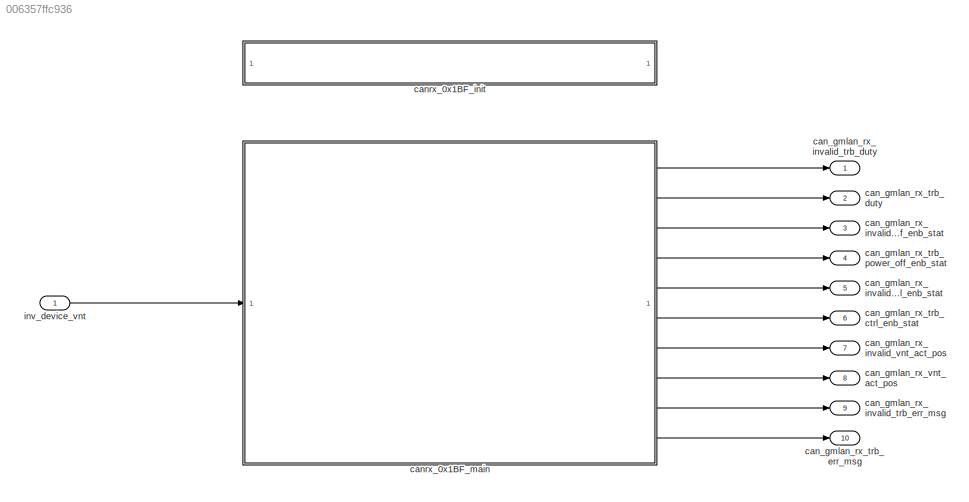
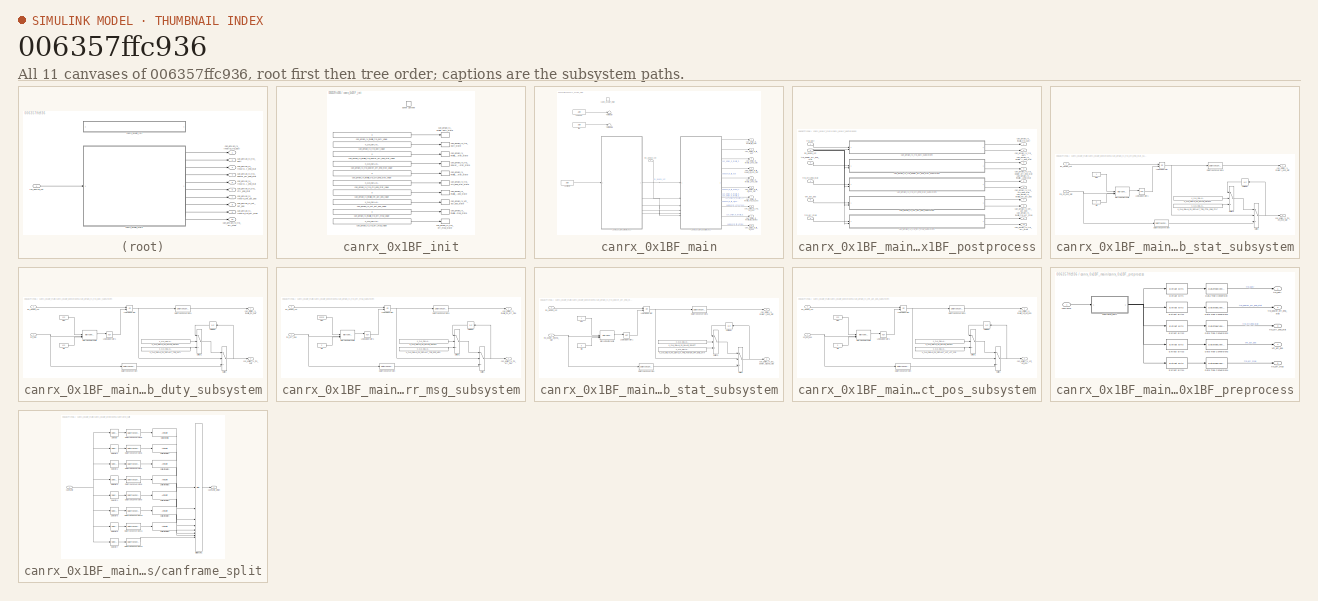
[diagram: thumbnail index - all 11 canvases of the model, root first then tree order]
MODEL slx_006357ffc936
KIND model
CONFIG AbsTol = auto
CONFIG EnableMultiTasking = off
CONFIG FixedStep = auto
CONFIG MaxStep = auto
CONFIG MinStep = auto
CONFIG RelTol = 1e-3
CONFIG SampleTimeConstraint = Unconstrained
CONFIG SolverName = FixedStepAuto
CONFIG StartTime = 0.0
CONFIG StopTime = 10.0
BLOCK [Outport] can_gmlan_rx_invalid_trb_ctrl_enb_stat
  Port = 5
BLOCK [Outport] can_gmlan_rx_invalid_trb_duty
BLOCK [Outport] can_gmlan_rx_invalid_trb_err_msg
  Port = 9
BLOCK [Outport] can_gmlan_rx_invalid_trb_power_off_enb_stat
  Port = 3
BLOCK [Outport] can_gmlan_rx_invalid_vnt_act_pos
  Port = 7
BLOCK [Outport] can_gmlan_rx_trb_ctrl_enb_stat
  Port = 6
BLOCK [Outport] can_gmlan_rx_trb_duty
  Port = 2
BLOCK [Outport] can_gmlan_rx_trb_err_msg
  Port = 10
BLOCK [Outport] can_gmlan_rx_trb_power_off_enb_stat
  Port = 4
BLOCK [Outport] can_gmlan_rx_vnt_act_pos
  Port = 8
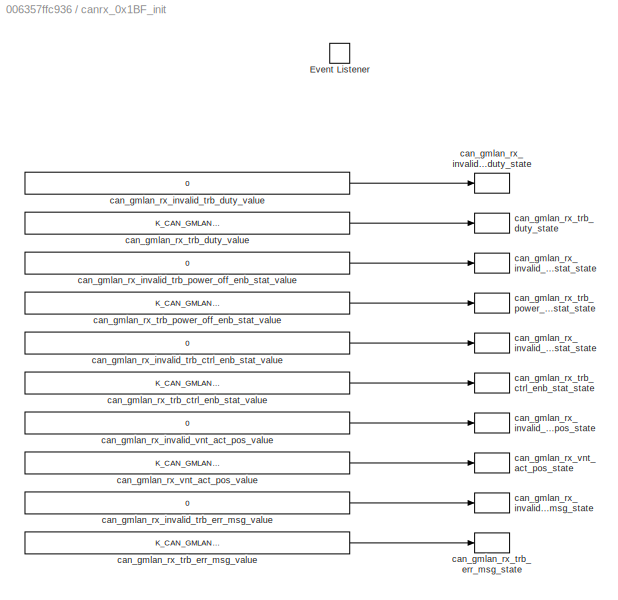
BLOCK [SubSystem] canrx_0x1BF_init
  TreatAsAtomicUnit = on
BLOCK [EventListener] canrx_0x1BF_init/Event Listener
  DisableCoverage = on
  EventName = reset
BLOCK [StateWriter] canrx_0x1BF_init/can_gmlan_rx_invalid_trb_ctrl_enb_stat_state
  StateOwnerBlock = ../../canrx_0x1BF_main/can_gmlan_rx_invalid_trb_ctrl_enb_stat
BLOCK [Constant] canrx_0x1BF_init/can_gmlan_rx_invalid_trb_ctrl_enb_stat_value
  OutDataTypeStr = Inherit: Inherit via back propagation
  Value = 0
BLOCK [StateWriter] canrx_0x1BF_init/can_gmlan_rx_invalid_trb_duty_state
  StateOwnerBlock = ../../canrx_0x1BF_main/can_gmlan_rx_invalid_trb_duty
BLOCK [Constant] canrx_0x1BF_init/can_gmlan_rx_invalid_trb_duty_value
  OutDataTypeStr = Inherit: Inherit via back propagation
  Value = 0
BLOCK [StateWriter] canrx_0x1BF_init/can_gmlan_rx_invalid_trb_err_msg_state
  StateOwnerBlock = ../../canrx_0x1BF_main/can_gmlan_rx_invalid_trb_err_msg
BLOCK [Constant] canrx_0x1BF_init/can_gmlan_rx_invalid_trb_err_msg_value
  OutDataTypeStr = Inherit: Inherit via back propagation
  Value = 0
BLOCK [StateWriter] canrx_0x1BF_init/can_gmlan_rx_invalid_trb_power_off_enb_stat_state
  StateOwnerBlock = ../../canrx_0x1BF_main/can_gmlan_rx_invalid_trb_power_off_enb_stat
BLOCK [Constant] canrx_0x1BF_init/can_gmlan_rx_invalid_trb_power_off_enb_stat_value
  OutDataTypeStr = Inherit: Inherit via back propagation
  Value = 0
BLOCK [StateWriter] canrx_0x1BF_init/can_gmlan_rx_invalid_vnt_act_pos_state
  StateOwnerBlock = ../../canrx_0x1BF_main/can_gmlan_rx_invalid_vnt_act_pos
BLOCK [Constant] canrx_0x1BF_init/can_gmlan_rx_invalid_vnt_act_pos_value
  OutDataTypeStr = Inherit: Inherit via back propagation
  Value = 0
BLOCK [StateWriter] canrx_0x1BF_init/can_gmlan_rx_trb_ctrl_enb_stat_state
  StateOwnerBlock = ../../canrx_0x1BF_main/can_gmlan_rx_trb_ctrl_enb_stat
BLOCK [Constant] canrx_0x1BF_init/can_gmlan_rx_trb_ctrl_enb_stat_value
  OutDataTypeStr = Inherit: Inherit via back propagation
  Value = K_CAN_GMLAN_RX_DEFAULT_TRB_CTRL_ENB_STAT
BLOCK [StateWriter] canrx_0x1BF_init/can_gmlan_rx_trb_duty_state
  StateOwnerBlock = ../../canrx_0x1BF_main/can_gmlan_rx_trb_duty
BLOCK [Constant] canrx_0x1BF_init/can_gmlan_rx_trb_duty_value
  OutDataTypeStr = Inherit: Inherit via back propagation
  Value = K_CAN_GMLAN_RX_DEFAULT_TRB_DUTY
BLOCK [StateWriter] canrx_0x1BF_init/can_gmlan_rx_trb_err_msg_state
  StateOwnerBlock = ../../canrx_0x1BF_main/can_gmlan_rx_trb_err_msg
BLOCK [Constant] canrx_0x1BF_init/can_gmlan_rx_trb_err_msg_value
  OutDataTypeStr = Inherit: Inherit via back propagation
  Value = K_CAN_GMLAN_RX_DEFAULT_TRB_ERR_MSG
BLOCK [StateWriter] canrx_0x1BF_init/can_gmlan_rx_trb_power_off_enb_stat_state
  StateOwnerBlock = ../../canrx_0x1BF_main/can_gmlan_rx_trb_power_off_enb_stat
BLOCK [Constant] canrx_0x1BF_init/can_gmlan_rx_trb_power_off_enb_stat_value
  OutDataTypeStr = Inherit: Inherit via back propagation
  Value = K_CAN_GMLAN_RX_DEFAULT_TRB_POWER_OFF_ENB_STAT
BLOCK [StateWriter] canrx_0x1BF_init/can_gmlan_rx_vnt_act_pos_state
  StateOwnerBlock = ../../canrx_0x1BF_main/can_gmlan_rx_vnt_act_pos
BLOCK [Constant] canrx_0x1BF_init/can_gmlan_rx_vnt_act_pos_value
  OutDataTypeStr = Inherit: Inherit via back propagation
  Value = K_CAN_GMLAN_RX_DEFAULT_VNT_ACT_POS
BLOCK [SubSystem] canrx_0x1BF_main
  TreatAsAtomicUnit = on
BLOCK [Terminator] canrx_0x1BF_main/Terminator
BLOCK [Terminator] canrx_0x1BF_main/Terminator1
BLOCK [Outport] canrx_0x1BF_main/can_gmlan_rx_invalid_trb_ctrl_enb_stat
  Port = 5
BLOCK [Outport] canrx_0x1BF_main/can_gmlan_rx_invalid_trb_duty
BLOCK [Outport] canrx_0x1BF_main/can_gmlan_rx_invalid_trb_err_msg
  Port = 9
BLOCK [Outport] canrx_0x1BF_main/can_gmlan_rx_invalid_trb_power_off_enb_stat
  Port = 3
BLOCK [Outport] canrx_0x1BF_main/can_gmlan_rx_invalid_vnt_act_pos
  Port = 7
BLOCK [Outport] canrx_0x1BF_main/can_gmlan_rx_trb_ctrl_enb_stat
  Port = 6
BLOCK [Outport] canrx_0x1BF_main/can_gmlan_rx_trb_duty
  Port = 2
BLOCK [Outport] canrx_0x1BF_main/can_gmlan_rx_trb_err_msg
  Port = 10
BLOCK [Outport] canrx_0x1BF_main/can_gmlan_rx_trb_power_off_enb_stat
  Port = 4
BLOCK [Outport] canrx_0x1BF_main/can_gmlan_rx_vnt_act_pos
  Port = 8
BLOCK [ArgIn] canrx_0x1BF_main/canframe
  ArgumentName = canframe
  DisableCoverage = on
  OutDataTypeStr = uint8
  Port = 2
  PortDimensions = 8
BLOCK [TriggerPort] canrx_0x1BF_main/canrx_0x1BF_main
  FunctionName = canrx_0x1BF_main
  FunctionVisibility = scoped
  IsSimulinkFunction = on
  StatesWhenEnabling = held
  TriggerType = function-call
  VariantControl = (inherit)
BLOCK [SubSystem] canrx_0x1BF_main/canrx_0x1BF_postprocess
  RTWFcnNameOpts = Use subsystem name
  RTWSystemCode = Reusable function
  TreatAsAtomicUnit = on
BLOCK [Outport] canrx_0x1BF_main/canrx_0x1BF_postprocess/can_gmlan_rx_invalid_trb_ctrl_enb_stat
  Port = 5
BLOCK [Outport] canrx_0x1BF_main/canrx_0x1BF_postprocess/can_gmlan_rx_invalid_trb_duty
BLOCK [Outport] canrx_0x1BF_main/canrx_0x1BF_postprocess/can_gmlan_rx_invalid_trb_err_msg
  Port = 9
BLOCK [Outport] canrx_0x1BF_main/canrx_0x1BF_postprocess/can_gmlan_rx_invalid_trb_power_off_enb_stat
  Port = 3
BLOCK [Outport] canrx_0x1BF_main/canrx_0x1BF_postprocess/can_gmlan_rx_invalid_vnt_act_pos
  Port = 7
BLOCK [Outport] canrx_0x1BF_main/canrx_0x1BF_postprocess/can_gmlan_rx_trb_ctrl_enb_stat
  Port = 6
BLOCK [SubSystem] canrx_0x1BF_main/canrx_0x1BF_postprocess/can_gmlan_rx_trb_ctrl_enb_stat_subsystem
  RTWFcnNameOpts = Use subsystem name
  RTWSystemCode = Reusable function
  TreatAsAtomicUnit = on
BLOCK [DataTypeConversion] canrx_0x1BF_main/canrx_0x1BF_postprocess/can_gmlan_rx_trb_ctrl_enb_stat_subsystem/Data Type Conversion
  ConvertRealWorld = Stored Integer (SI)
  RndMeth = Floor
  SaturateOnIntegerOverflow = off
BLOCK [DataTypeConversion] canrx_0x1BF_main/canrx_0x1BF_postprocess/can_gmlan_rx_trb_ctrl_enb_stat_subsystem/Data Type Conversion1
  ConvertRealWorld = Stored Integer (SI)
  RndMeth = Floor
  SaturateOnIntegerOverflow = off
BLOCK [Reference] canrx_0x1BF_main/canrx_0x1BF_postprocess/can_gmlan_rx_trb_ctrl_enb_stat_subsystem/Interval Test Dynamic  REF=simulink/Logic and Bit
Operations/Interval Test
Dynamic
  SourceBlock = simulink/Logic and Bit\nOperations/Interval Test\nDynamic
  SourceType = Interval Test Dynamic
BLOCK [Constant] canrx_0x1BF_main/canrx_0x1BF_postprocess/can_gmlan_rx_trb_ctrl_enb_stat_subsystem/K_CAN_GMLAN_RX_DEFAULT_TRB_CTRL_ENB_STAT
  OutDataTypeStr = Inherit: Inherit via back propagation
  Value = K_CAN_GMLAN_RX_DEFAULT_TRB_CTRL_ENB_STAT
BLOCK [Constant] canrx_0x1BF_main/canrx_0x1BF_postprocess/can_gmlan_rx_trb_ctrl_enb_stat_subsystem/K_CAN_GMLAN_RX_INVALID_SELECT
  OutDataTypeStr = Inherit: Inherit via back propagation
  Value = K_CAN_GMLAN_RX_INVALID_SELECT
BLOCK [Logic] canrx_0x1BF_main/canrx_0x1BF_postprocess/can_gmlan_rx_trb_ctrl_enb_stat_subsystem/Logical Operator
  AllPortsSameDT = off
  Operator = OR
  OutDataTypeStr = boolean
BLOCK [Logic] canrx_0x1BF_main/canrx_0x1BF_postprocess/can_gmlan_rx_trb_ctrl_enb_stat_subsystem/Logical Operator1
  AllPortsSameDT = off
  Operator = NOT
  OutDataTypeStr = boolean
BLOCK [Constant] canrx_0x1BF_main/canrx_0x1BF_postprocess/can_gmlan_rx_trb_ctrl_enb_stat_subsystem/Max
  OutDataTypeStr = Inherit: Inherit via back propagation
BLOCK [Constant] canrx_0x1BF_main/canrx_0x1BF_postprocess/can_gmlan_rx_trb_ctrl_enb_stat_subsystem/Min
  OutDataTypeStr = Inherit: Inherit via back propagation
  Value = 0
BLOCK [Switch] canrx_0x1BF_main/canrx_0x1BF_postprocess/can_gmlan_rx_trb_ctrl_enb_stat_subsystem/Switch
  Criteria = u2 > Threshold
  InputSameDT = off
  SaturateOnIntegerOverflow = off
BLOCK [Switch] canrx_0x1BF_main/canrx_0x1BF_postprocess/can_gmlan_rx_trb_ctrl_enb_stat_subsystem/Switch1
  Criteria = u2 > Threshold
  InputSameDT = off
  SaturateOnIntegerOverflow = off
BLOCK [UnitDelay] canrx_0x1BF_main/canrx_0x1BF_postprocess/can_gmlan_rx_trb_ctrl_enb_stat_subsystem/Unit Delay
  HasFrameUpgradeWarning = on
  NameLocation = top
  SampleTime = -1
BLOCK [Outport] canrx_0x1BF_main/canrx_0x1BF_postprocess/can_gmlan_rx_trb_ctrl_enb_stat_subsystem/can_gmlan_rx_invalid_trb_ctrl_enb_stat
BLOCK [Outport] canrx_0x1BF_main/canrx_0x1BF_postprocess/can_gmlan_rx_trb_ctrl_enb_stat_subsystem/can_gmlan_rx_trb_ctrl_enb_stat
  Port = 2
BLOCK [Inport] canrx_0x1BF_main/canrx_0x1BF_postprocess/can_gmlan_rx_trb_ctrl_enb_stat_subsystem/inv_device_vnt
  Port = 2
BLOCK [Inport] canrx_0x1BF_main/canrx_0x1BF_postprocess/can_gmlan_rx_trb_ctrl_enb_stat_subsystem/trb_ctrl_enb_stat
BLOCK [Outport] canrx_0x1BF_main/canrx_0x1BF_postprocess/can_gmlan_rx_trb_duty
  Port = 2
BLOCK [SubSystem] canrx_0x1BF_main/canrx_0x1BF_postprocess/can_gmlan_rx_trb_duty_subsystem
  RTWFcnNameOpts = Use subsystem name
  RTWSystemCode = Reusable function
  TreatAsAtomicUnit = on
BLOCK [DataTypeConversion] canrx_0x1BF_main/canrx_0x1BF_postprocess/can_gmlan_rx_trb_duty_subsystem/Data Type Conversion
  ConvertRealWorld = Stored Integer (SI)
  RndMeth = Floor
  SaturateOnIntegerOverflow = off
BLOCK [DataTypeConversion] canrx_0x1BF_main/canrx_0x1BF_postprocess/can_gmlan_rx_trb_duty_subsystem/Data Type Conversion1
  ConvertRealWorld = Stored Integer (SI)
  RndMeth = Floor
  SaturateOnIntegerOverflow = off
BLOCK [Reference] canrx_0x1BF_main/canrx_0x1BF_postprocess/can_gmlan_rx_trb_duty_subsystem/Interval Test Dynamic  REF=simulink/Logic and Bit
Operations/Interval Test
Dynamic
  SourceBlock = simulink/Logic and Bit\nOperations/Interval Test\nDynamic
  SourceType = Interval Test Dynamic
BLOCK [Constant] canrx_0x1BF_main/canrx_0x1BF_postprocess/can_gmlan_rx_trb_duty_subsystem/K_CAN_GMLAN_RX_DEFAULT_TRB_DUTY
  OutDataTypeStr = Inherit: Inherit via back propagation
  Value = K_CAN_GMLAN_RX_DEFAULT_TRB_DUTY
BLOCK [Constant] canrx_0x1BF_main/canrx_0x1BF_postprocess/can_gmlan_rx_trb_duty_subsystem/K_CAN_GMLAN_RX_INVALID_SELECT
  OutDataTypeStr = Inherit: Inherit via back propagation
  Value = K_CAN_GMLAN_RX_INVALID_SELECT
BLOCK [Logic] canrx_0x1BF_main/canrx_0x1BF_postprocess/can_gmlan_rx_trb_duty_subsystem/Logical Operator
  AllPortsSameDT = off
  Operator = OR
  OutDataTypeStr = boolean
BLOCK [Logic] canrx_0x1BF_main/canrx_0x1BF_postprocess/can_gmlan_rx_trb_duty_subsystem/Logical Operator1
  AllPortsSameDT = off
  Operator = NOT
  OutDataTypeStr = boolean
BLOCK [Constant] canrx_0x1BF_main/canrx_0x1BF_postprocess/can_gmlan_rx_trb_duty_subsystem/Max
  OutDataTypeStr = Inherit: Inherit via back propagation
  Value = 100
BLOCK [Constant] canrx_0x1BF_main/canrx_0x1BF_postprocess/can_gmlan_rx_trb_duty_subsystem/Min
  OutDataTypeStr = Inherit: Inherit via back propagation
  Value = -100
BLOCK [Switch] canrx_0x1BF_main/canrx_0x1BF_postprocess/can_gmlan_rx_trb_duty_subsystem/Switch
  Criteria = u2 > Threshold
  InputSameDT = off
  SaturateOnIntegerOverflow = off
BLOCK [Switch] canrx_0x1BF_main/canrx_0x1BF_postprocess/can_gmlan_rx_trb_duty_subsystem/Switch1
  Criteria = u2 > Threshold
  InputSameDT = off
  SaturateOnIntegerOverflow = off
BLOCK [UnitDelay] canrx_0x1BF_main/canrx_0x1BF_postprocess/can_gmlan_rx_trb_duty_subsystem/Unit Delay
  HasFrameUpgradeWarning = on
  NameLocation = top
  SampleTime = -1
BLOCK [Outport] canrx_0x1BF_main/canrx_0x1BF_postprocess/can_gmlan_rx_trb_duty_subsystem/can_gmlan_rx_invalid_trb_duty
BLOCK [Outport] canrx_0x1BF_main/canrx_0x1BF_postprocess/can_gmlan_rx_trb_duty_subsystem/can_gmlan_rx_trb_duty
  Port = 2
BLOCK [Inport] canrx_0x1BF_main/canrx_0x1BF_postprocess/can_gmlan_rx_trb_duty_subsystem/inv_device_vnt
  Port = 2
BLOCK [Inport] canrx_0x1BF_main/canrx_0x1BF_postprocess/can_gmlan_rx_trb_duty_subsystem/trb_duty
BLOCK [Outport] canrx_0x1BF_main/canrx_0x1BF_postprocess/can_gmlan_rx_trb_err_msg
  Port = 10
BLOCK [SubSystem] canrx_0x1BF_main/canrx_0x1BF_postprocess/can_gmlan_rx_trb_err_msg_subsystem
  RTWFcnNameOpts = Use subsystem name
  RTWSystemCode = Reusable function
  TreatAsAtomicUnit = on
BLOCK [DataTypeConversion] canrx_0x1BF_main/canrx_0x1BF_postprocess/can_gmlan_rx_trb_err_msg_subsystem/Data Type Conversion
  ConvertRealWorld = Stored Integer (SI)
  RndMeth = Floor
  SaturateOnIntegerOverflow = off
BLOCK [DataTypeConversion] canrx_0x1BF_main/canrx_0x1BF_postprocess/can_gmlan_rx_trb_err_msg_subsystem/Data Type Conversion1
  ConvertRealWorld = Stored Integer (SI)
  RndMeth = Floor
  SaturateOnIntegerOverflow = off
BLOCK [Reference] canrx_0x1BF_main/canrx_0x1BF_postprocess/can_gmlan_rx_trb_err_msg_subsystem/Interval Test Dynamic  REF=simulink/Logic and Bit
Operations/Interval Test
Dynamic
  SourceBlock = simulink/Logic and Bit\nOperations/Interval Test\nDynamic
  SourceType = Interval Test Dynamic
BLOCK [Constant] canrx_0x1BF_main/canrx_0x1BF_postprocess/can_gmlan_rx_trb_err_msg_subsystem/K_CAN_GMLAN_RX_DEFAULT_TRB_ERR_MSG
  OutDataTypeStr = Inherit: Inherit via back propagation
  Value = K_CAN_GMLAN_RX_DEFAULT_TRB_ERR_MSG
BLOCK [Constant] canrx_0x1BF_main/canrx_0x1BF_postprocess/can_gmlan_rx_trb_err_msg_subsystem/K_CAN_GMLAN_RX_INVALID_SELECT
  OutDataTypeStr = Inherit: Inherit via back propagation
  Value = K_CAN_GMLAN_RX_INVALID_SELECT
BLOCK [Logic] canrx_0x1BF_main/canrx_0x1BF_postprocess/can_gmlan_rx_trb_err_msg_subsystem/Logical Operator
  AllPortsSameDT = off
  Operator = OR
  OutDataTypeStr = boolean
BLOCK [Logic] canrx_0x1BF_main/canrx_0x1BF_postprocess/can_gmlan_rx_trb_err_msg_subsystem/Logical Operator1
  AllPortsSameDT = off
  Operator = NOT
  OutDataTypeStr = boolean
BLOCK [Constant] canrx_0x1BF_main/canrx_0x1BF_postprocess/can_gmlan_rx_trb_err_msg_subsystem/Max
  OutDataTypeStr = Inherit: Inherit via back propagation
  Value = 65535
BLOCK [Constant] canrx_0x1BF_main/canrx_0x1BF_postprocess/can_gmlan_rx_trb_err_msg_subsystem/Min
  OutDataTypeStr = Inherit: Inherit via back propagation
  Value = 0
BLOCK [Switch] canrx_0x1BF_main/canrx_0x1BF_postprocess/can_gmlan_rx_trb_err_msg_subsystem/Switch
  Criteria = u2 > Threshold
  InputSameDT = off
  SaturateOnIntegerOverflow = off
BLOCK [Switch] canrx_0x1BF_main/canrx_0x1BF_postprocess/can_gmlan_rx_trb_err_msg_subsystem/Switch1
  Criteria = u2 > Threshold
  InputSameDT = off
  SaturateOnIntegerOverflow = off
BLOCK [UnitDelay] canrx_0x1BF_main/canrx_0x1BF_postprocess/can_gmlan_rx_trb_err_msg_subsystem/Unit Delay
  HasFrameUpgradeWarning = on
  NameLocation = top
  SampleTime = -1
BLOCK [Outport] canrx_0x1BF_main/canrx_0x1BF_postprocess/can_gmlan_rx_trb_err_msg_subsystem/can_gmlan_rx_invalid_trb_err_msg
BLOCK [Outport] canrx_0x1BF_main/canrx_0x1BF_postprocess/can_gmlan_rx_trb_err_msg_subsystem/can_gmlan_rx_trb_err_msg
  Port = 2
BLOCK [Inport] canrx_0x1BF_main/canrx_0x1BF_postprocess/can_gmlan_rx_trb_err_msg_subsystem/inv_device_vnt
  Port = 2
BLOCK [Inport] canrx_0x1BF_main/canrx_0x1BF_postprocess/can_gmlan_rx_trb_err_msg_subsystem/trb_err_msg
BLOCK [Outport] canrx_0x1BF_main/canrx_0x1BF_postprocess/can_gmlan_rx_trb_power_off_enb_stat
  Port = 4
BLOCK [SubSystem] canrx_0x1BF_main/canrx_0x1BF_postprocess/can_gmlan_rx_trb_power_off_enb_stat_subsystem
  RTWFcnNameOpts = Use subsystem name
  RTWSystemCode = Reusable function
  TreatAsAtomicUnit = on
BLOCK [DataTypeConversion] canrx_0x1BF_main/canrx_0x1BF_postprocess/can_gmlan_rx_trb_power_off_enb_stat_subsystem/Data Type Conversion
  ConvertRealWorld = Stored Integer (SI)
  RndMeth = Floor
  SaturateOnIntegerOverflow = off
BLOCK [DataTypeConversion] canrx_0x1BF_main/canrx_0x1BF_postprocess/can_gmlan_rx_trb_power_off_enb_stat_subsystem/Data Type Conversion1
  ConvertRealWorld = Stored Integer (SI)
  RndMeth = Floor
  SaturateOnIntegerOverflow = off
BLOCK [Reference] canrx_0x1BF_main/canrx_0x1BF_postprocess/can_gmlan_rx_trb_power_off_enb_stat_subsystem/Interval Test Dynamic  REF=simulink/Logic and Bit
Operations/Interval Test
Dynamic
  SourceBlock = simulink/Logic and Bit\nOperations/Interval Test\nDynamic
  SourceType = Interval Test Dynamic
BLOCK [Constant] canrx_0x1BF_main/canrx_0x1BF_postprocess/can_gmlan_rx_trb_power_off_enb_stat_subsystem/K_CAN_GMLAN_RX_DEFAULT_TRB_POWER_OFF_ENB_STAT
  OutDataTypeStr = Inherit: Inherit via back propagation
  Value = K_CAN_GMLAN_RX_DEFAULT_TRB_POWER_OFF_ENB_STAT
BLOCK [Constant] canrx_0x1BF_main/canrx_0x1BF_postprocess/can_gmlan_rx_trb_power_off_enb_stat_subsystem/K_CAN_GMLAN_RX_INVALID_SELECT
  OutDataTypeStr = Inherit: Inherit via back propagation
  Value = K_CAN_GMLAN_RX_INVALID_SELECT
BLOCK [Logic] canrx_0x1BF_main/canrx_0x1BF_postprocess/can_gmlan_rx_trb_power_off_enb_stat_subsystem/Logical Operator
  AllPortsSameDT = off
  Operator = OR
  OutDataTypeStr = boolean
BLOCK [Logic] canrx_0x1BF_main/canrx_0x1BF_postprocess/can_gmlan_rx_trb_power_off_enb_stat_subsystem/Logical Operator1
  AllPortsSameDT = off
  Operator = NOT
  OutDataTypeStr = boolean
BLOCK [Constant] canrx_0x1BF_main/canrx_0x1BF_postprocess/can_gmlan_rx_trb_power_off_enb_stat_subsystem/Max
  OutDataTypeStr = Inherit: Inherit via back propagation
BLOCK [Constant] canrx_0x1BF_main/canrx_0x1BF_postprocess/can_gmlan_rx_trb_power_off_enb_stat_subsystem/Min
  OutDataTypeStr = Inherit: Inherit via back propagation
  Value = 0
BLOCK [Switch] canrx_0x1BF_main/canrx_0x1BF_postprocess/can_gmlan_rx_trb_power_off_enb_stat_subsystem/Switch
  Criteria = u2 > Threshold
  InputSameDT = off
  SaturateOnIntegerOverflow = off
BLOCK [Switch] canrx_0x1BF_main/canrx_0x1BF_postprocess/can_gmlan_rx_trb_power_off_enb_stat_subsystem/Switch1
  Criteria = u2 > Threshold
  InputSameDT = off
  SaturateOnIntegerOverflow = off
BLOCK [UnitDelay] canrx_0x1BF_main/canrx_0x1BF_postprocess/can_gmlan_rx_trb_power_off_enb_stat_subsystem/Unit Delay
  HasFrameUpgradeWarning = on
  NameLocation = top
  SampleTime = -1
BLOCK [Outport] canrx_0x1BF_main/canrx_0x1BF_postprocess/can_gmlan_rx_trb_power_off_enb_stat_subsystem/can_gmlan_rx_invalid_trb_power_off_enb_stat
BLOCK [Outport] canrx_0x1BF_main/canrx_0x1BF_postprocess/can_gmlan_rx_trb_power_off_enb_stat_subsystem/can_gmlan_rx_trb_power_off_enb_stat
  Port = 2
BLOCK [Inport] canrx_0x1BF_main/canrx_0x1BF_postprocess/can_gmlan_rx_trb_power_off_enb_stat_subsystem/inv_device_vnt
  Port = 2
BLOCK [Inport] canrx_0x1BF_main/canrx_0x1BF_postprocess/can_gmlan_rx_trb_power_off_enb_stat_subsystem/trb_power_off_enb_stat
BLOCK [Outport] canrx_0x1BF_main/canrx_0x1BF_postprocess/can_gmlan_rx_vnt_act_pos
  Port = 8
BLOCK [SubSystem] canrx_0x1BF_main/canrx_0x1BF_postprocess/can_gmlan_rx_vnt_act_pos_subsystem
  RTWFcnNameOpts = Use subsystem name
  RTWSystemCode = Reusable function
  TreatAsAtomicUnit = on
BLOCK [DataTypeConversion] canrx_0x1BF_main/canrx_0x1BF_postprocess/can_gmlan_rx_vnt_act_pos_subsystem/Data Type Conversion
  ConvertRealWorld = Stored Integer (SI)
  RndMeth = Floor
  SaturateOnIntegerOverflow = off
BLOCK [DataTypeConversion] canrx_0x1BF_main/canrx_0x1BF_postprocess/can_gmlan_rx_vnt_act_pos_subsystem/Data Type Conversion1
  ConvertRealWorld = Stored Integer (SI)
  RndMeth = Floor
  SaturateOnIntegerOverflow = off
BLOCK [Reference] canrx_0x1BF_main/canrx_0x1BF_postprocess/can_gmlan_rx_vnt_act_pos_subsystem/Interval Test Dynamic  REF=simulink/Logic and Bit
Operations/Interval Test
Dynamic
  SourceBlock = simulink/Logic and Bit\nOperations/Interval Test\nDynamic
  SourceType = Interval Test Dynamic
BLOCK [Constant] canrx_0x1BF_main/canrx_0x1BF_postprocess/can_gmlan_rx_vnt_act_pos_subsystem/K_CAN_GMLAN_RX_DEFAULT_VNT_ACT_POS
  OutDataTypeStr = Inherit: Inherit via back propagation
  Value = K_CAN_GMLAN_RX_DEFAULT_VNT_ACT_POS
BLOCK [Constant] canrx_0x1BF_main/canrx_0x1BF_postprocess/can_gmlan_rx_vnt_act_pos_subsystem/K_CAN_GMLAN_RX_INVALID_SELECT
  OutDataTypeStr = Inherit: Inherit via back propagation
  Value = K_CAN_GMLAN_RX_INVALID_SELECT
BLOCK [Logic] canrx_0x1BF_main/canrx_0x1BF_postprocess/can_gmlan_rx_vnt_act_pos_subsystem/Logical Operator
  AllPortsSameDT = off
  Operator = OR
  OutDataTypeStr = boolean
BLOCK [Logic] canrx_0x1BF_main/canrx_0x1BF_postprocess/can_gmlan_rx_vnt_act_pos_subsystem/Logical Operator1
  AllPortsSameDT = off
  Operator = NOT
  OutDataTypeStr = boolean
BLOCK [Constant] canrx_0x1BF_main/canrx_0x1BF_postprocess/can_gmlan_rx_vnt_act_pos_subsystem/Max
  OutDataTypeStr = Inherit: Inherit via back propagation
  Value = 100
BLOCK [Constant] canrx_0x1BF_main/canrx_0x1BF_postprocess/can_gmlan_rx_vnt_act_pos_subsystem/Min
  OutDataTypeStr = Inherit: Inherit via back propagation
  Value = 0
BLOCK [Switch] canrx_0x1BF_main/canrx_0x1BF_postprocess/can_gmlan_rx_vnt_act_pos_subsystem/Switch
  Criteria = u2 > Threshold
  InputSameDT = off
  SaturateOnIntegerOverflow = off
BLOCK [Switch] canrx_0x1BF_main/canrx_0x1BF_postprocess/can_gmlan_rx_vnt_act_pos_subsystem/Switch1
  Criteria = u2 > Threshold
  InputSameDT = off
  SaturateOnIntegerOverflow = off
BLOCK [UnitDelay] canrx_0x1BF_main/canrx_0x1BF_postprocess/can_gmlan_rx_vnt_act_pos_subsystem/Unit Delay
  HasFrameUpgradeWarning = on
  NameLocation = top
  SampleTime = -1
BLOCK [Outport] canrx_0x1BF_main/canrx_0x1BF_postprocess/can_gmlan_rx_vnt_act_pos_subsystem/can_gmlan_rx_invalid_vnt_act_pos
BLOCK [Outport] canrx_0x1BF_main/canrx_0x1BF_postprocess/can_gmlan_rx_vnt_act_pos_subsystem/can_gmlan_rx_vnt_act_pos
  Port = 2
BLOCK [Inport] canrx_0x1BF_main/canrx_0x1BF_postprocess/can_gmlan_rx_vnt_act_pos_subsystem/inv_device_vnt
  Port = 2
BLOCK [Inport] canrx_0x1BF_main/canrx_0x1BF_postprocess/can_gmlan_rx_vnt_act_pos_subsystem/vnt_act_pos
BLOCK [Inport] canrx_0x1BF_main/canrx_0x1BF_postprocess/inv_device_vnt
  Port = 2
BLOCK [Inport] canrx_0x1BF_main/canrx_0x1BF_postprocess/trb_ctrl_enb_stat
  Port = 4
BLOCK [Inport] canrx_0x1BF_main/canrx_0x1BF_postprocess/trb_duty
BLOCK [Inport] canrx_0x1BF_main/canrx_0x1BF_postprocess/trb_err_msg
  Port = 6
BLOCK [Inport] canrx_0x1BF_main/canrx_0x1BF_postprocess/trb_power_off_enb_stat
  Port = 3
BLOCK [Inport] canrx_0x1BF_main/canrx_0x1BF_postprocess/vnt_act_pos
  Port = 5
BLOCK [SubSystem] canrx_0x1BF_main/canrx_0x1BF_preprocess
  RTWFcnNameOpts = Use subsystem name
  RTWSystemCode = Reusable function
  TreatAsAtomicUnit = on
BLOCK [DataTypeConversion] canrx_0x1BF_main/canrx_0x1BF_preprocess/Data Type Conversion
  ConvertRealWorld = Stored Integer (SI)
  RndMeth = Floor
  SaturateOnIntegerOverflow = off
BLOCK [DataTypeConversion] canrx_0x1BF_main/canrx_0x1BF_preprocess/Data Type Conversion1
  ConvertRealWorld = Stored Integer (SI)
  RndMeth = Floor
  SaturateOnIntegerOverflow = off
BLOCK [DataTypeConversion] canrx_0x1BF_main/canrx_0x1BF_preprocess/Data Type Conversion2
  ConvertRealWorld = Stored Integer (SI)
  RndMeth = Floor
  SaturateOnIntegerOverflow = off
BLOCK [DataTypeConversion] canrx_0x1BF_main/canrx_0x1BF_preprocess/Data Type Conversion3
  ConvertRealWorld = Stored Integer (SI)
  RndMeth = Floor
  SaturateOnIntegerOverflow = off
BLOCK [DataTypeConversion] canrx_0x1BF_main/canrx_0x1BF_preprocess/Data Type Conversion4
  ConvertRealWorld = Stored Integer (SI)
  RndMeth = Floor
  SaturateOnIntegerOverflow = off
BLOCK [Reference] canrx_0x1BF_main/canrx_0x1BF_preprocess/Extract Bits  REF=simulink/Logic and Bit
Operations/Extract Bits
  SourceBlock = simulink/Logic and Bit\nOperations/Extract Bits
  SourceType = Extract Bits
BLOCK [Reference] canrx_0x1BF_main/canrx_0x1BF_preprocess/Extract Bits1  REF=simulink/Logic and Bit
Operations/Extract Bits
  SourceBlock = simulink/Logic and Bit\nOperations/Extract Bits
  SourceType = Extract Bits
BLOCK [Reference] canrx_0x1BF_main/canrx_0x1BF_preprocess/Extract Bits2  REF=simulink/Logic and Bit
Operations/Extract Bits
  SourceBlock = simulink/Logic and Bit\nOperations/Extract Bits
  SourceType = Extract Bits
BLOCK [Reference] canrx_0x1BF_main/canrx_0x1BF_preprocess/Extract Bits3  REF=simulink/Logic and Bit
Operations/Extract Bits
  SourceBlock = simulink/Logic and Bit\nOperations/Extract Bits
  SourceType = Extract Bits
BLOCK [Reference] canrx_0x1BF_main/canrx_0x1BF_preprocess/Extract Bits4  REF=simulink/Logic and Bit
Operations/Extract Bits
  SourceBlock = simulink/Logic and Bit\nOperations/Extract Bits
  SourceType = Extract Bits
BLOCK [Inport] canrx_0x1BF_main/canrx_0x1BF_preprocess/canframe
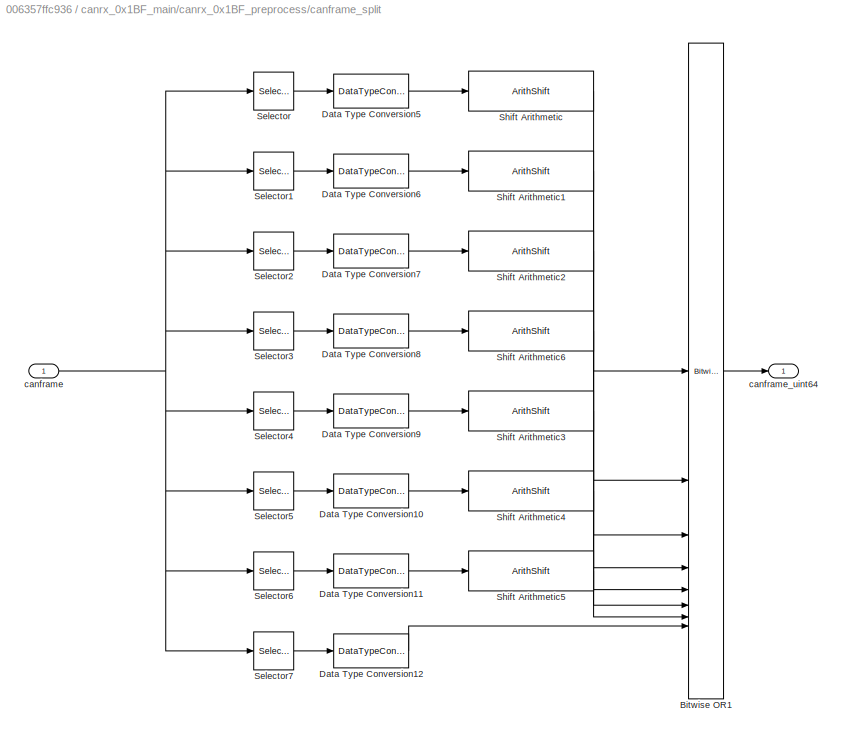
BLOCK [SubSystem] canrx_0x1BF_main/canrx_0x1BF_preprocess/canframe_split
  RTWSystemCode = Reusable function
BLOCK [Reference] canrx_0x1BF_main/canrx_0x1BF_preprocess/canframe_split/Bitwise OR1  REF=simulink/Logic and Bit
Operations/Bitwise
Operator
  SourceBlock = simulink/Logic and Bit\nOperations/Bitwise\nOperator
  SourceType = Bitwise Operator
BLOCK [DataTypeConversion] canrx_0x1BF_main/canrx_0x1BF_preprocess/canframe_split/Data Type Conversion10
  ConvertRealWorld = Stored Integer (SI)
  OutDataTypeStr = uint64
  RndMeth = Floor
  SaturateOnIntegerOverflow = off
BLOCK [DataTypeConversion] canrx_0x1BF_main/canrx_0x1BF_preprocess/canframe_split/Data Type Conversion11
  ConvertRealWorld = Stored Integer (SI)
  OutDataTypeStr = uint64
  RndMeth = Floor
  SaturateOnIntegerOverflow = off
BLOCK [DataTypeConversion] canrx_0x1BF_main/canrx_0x1BF_preprocess/canframe_split/Data Type Conversion12
  ConvertRealWorld = Stored Integer (SI)
  OutDataTypeStr = uint64
  RndMeth = Floor
  SaturateOnIntegerOverflow = off
BLOCK [DataTypeConversion] canrx_0x1BF_main/canrx_0x1BF_preprocess/canframe_split/Data Type Conversion5
  ConvertRealWorld = Stored Integer (SI)
  OutDataTypeStr = uint64
  RndMeth = Floor
  SaturateOnIntegerOverflow = off
BLOCK [DataTypeConversion] canrx_0x1BF_main/canrx_0x1BF_preprocess/canframe_split/Data Type Conversion6
  ConvertRealWorld = Stored Integer (SI)
  OutDataTypeStr = uint64
  RndMeth = Floor
  SaturateOnIntegerOverflow = off
BLOCK [DataTypeConversion] canrx_0x1BF_main/canrx_0x1BF_preprocess/canframe_split/Data Type Conversion7
  ConvertRealWorld = Stored Integer (SI)
  OutDataTypeStr = uint64
  RndMeth = Floor
  SaturateOnIntegerOverflow = off
BLOCK [DataTypeConversion] canrx_0x1BF_main/canrx_0x1BF_preprocess/canframe_split/Data Type Conversion8
  ConvertRealWorld = Stored Integer (SI)
  OutDataTypeStr = uint64
  RndMeth = Floor
  SaturateOnIntegerOverflow = off
BLOCK [DataTypeConversion] canrx_0x1BF_main/canrx_0x1BF_preprocess/canframe_split/Data Type Conversion9
  ConvertRealWorld = Stored Integer (SI)
  OutDataTypeStr = uint64
  RndMeth = Floor
  SaturateOnIntegerOverflow = off
BLOCK [Selector] canrx_0x1BF_main/canrx_0x1BF_preprocess/canframe_split/Selector
  IndexMode = Zero-based
  IndexOptions = Index vector (dialog)
  Indices = 0
  InputPortWidth = 8
  OutputSizes = 1
BLOCK [Selector] canrx_0x1BF_main/canrx_0x1BF_preprocess/canframe_split/Selector1
  IndexMode = Zero-based
  IndexOptions = Index vector (dialog)
  Indices = 1
  InputPortWidth = 8
  OutputSizes = 1
BLOCK [Selector] canrx_0x1BF_main/canrx_0x1BF_preprocess/canframe_split/Selector2
  IndexMode = Zero-based
  IndexOptions = Index vector (dialog)
  Indices = 2
  InputPortWidth = 8
  OutputSizes = 1
BLOCK [Selector] canrx_0x1BF_main/canrx_0x1BF_preprocess/canframe_split/Selector3
  IndexMode = Zero-based
  IndexOptions = Index vector (dialog)
  Indices = 3
  InputPortWidth = 8
  OutputSizes = 1
BLOCK [Selector] canrx_0x1BF_main/canrx_0x1BF_preprocess/canframe_split/Selector4
  IndexMode = Zero-based
  IndexOptions = Index vector (dialog)
  Indices = 4
  InputPortWidth = 8
  OutputSizes = 1
BLOCK [Selector] canrx_0x1BF_main/canrx_0x1BF_preprocess/canframe_split/Selector5
  IndexMode = Zero-based
  IndexOptions = Index vector (dialog)
  Indices = 5
  InputPortWidth = 8
  OutputSizes = 1
BLOCK [Selector] canrx_0x1BF_main/canrx_0x1BF_preprocess/canframe_split/Selector6
  IndexMode = Zero-based
  IndexOptions = Index vector (dialog)
  Indices = 6
  InputPortWidth = 8
  OutputSizes = 1
BLOCK [Selector] canrx_0x1BF_main/canrx_0x1BF_preprocess/canframe_split/Selector7
  IndexMode = Zero-based
  IndexOptions = Index vector (dialog)
  Indices = 7
  InputPortWidth = 8
  OutputSizes = 1
BLOCK [ArithShift] canrx_0x1BF_main/canrx_0x1BF_preprocess/canframe_split/Shift Arithmetic
  BitShiftDirection = Left
  BitShiftNumber = 56
  DiagnosticForOORShift = Error
  InputPortMap = u0
BLOCK [ArithShift] canrx_0x1BF_main/canrx_0x1BF_preprocess/canframe_split/Shift Arithmetic1
  BitShiftDirection = Left
  BitShiftNumber = 48
  DiagnosticForOORShift = Error
  InputPortMap = u0
BLOCK [ArithShift] canrx_0x1BF_main/canrx_0x1BF_preprocess/canframe_split/Shift Arithmetic2
  BitShiftDirection = Left
  BitShiftNumber = 40
  DiagnosticForOORShift = Error
  InputPortMap = u0
BLOCK [ArithShift] canrx_0x1BF_main/canrx_0x1BF_preprocess/canframe_split/Shift Arithmetic3
  BitShiftDirection = Left
  BitShiftNumber = 24
  DiagnosticForOORShift = Error
  InputPortMap = u0
BLOCK [ArithShift] canrx_0x1BF_main/canrx_0x1BF_preprocess/canframe_split/Shift Arithmetic4
  BitShiftDirection = Left
  BitShiftNumber = 16
  DiagnosticForOORShift = Error
  InputPortMap = u0
BLOCK [ArithShift] canrx_0x1BF_main/canrx_0x1BF_preprocess/canframe_split/Shift Arithmetic5
  BitShiftDirection = Left
  BitShiftNumber = 8
  DiagnosticForOORShift = Error
  InputPortMap = u0
BLOCK [ArithShift] canrx_0x1BF_main/canrx_0x1BF_preprocess/canframe_split/Shift Arithmetic6
  BitShiftDirection = Left
  BitShiftNumber = 32
  DiagnosticForOORShift = Error
  InputPortMap = u0
BLOCK [Inport] canrx_0x1BF_main/canrx_0x1BF_preprocess/canframe_split/canframe
BLOCK [Outport] canrx_0x1BF_main/canrx_0x1BF_preprocess/canframe_split/canframe_uint64
BLOCK [Outport] canrx_0x1BF_main/canrx_0x1BF_preprocess/trb_ctrl_enb_stat
  Port = 3
BLOCK [Outport] canrx_0x1BF_main/canrx_0x1BF_preprocess/trb_duty
BLOCK [Outport] canrx_0x1BF_main/canrx_0x1BF_preprocess/trb_err_msg
  Port = 5
BLOCK [Outport] canrx_0x1BF_main/canrx_0x1BF_preprocess/trb_power_off_enb_stat
  Port = 2
BLOCK [Outport] canrx_0x1BF_main/canrx_0x1BF_preprocess/vnt_act_pos
  Port = 4
BLOCK [ArgIn] canrx_0x1BF_main/channel
  ArgumentName = channel
  DisableCoverage = on
  OutDataTypeStr = uint64
BLOCK [Inport] canrx_0x1BF_main/inv_device_vnt
BLOCK [ArgIn] canrx_0x1BF_main/time
  ArgumentName = time
  DisableCoverage = on
  OutDataTypeStr = uint64
  Port = 3
BLOCK [Inport] inv_device_vnt
LINE canrx_0x1BF_init/can_gmlan_rx_invalid_trb_ctrl_enb_stat_value:1 -> canrx_0x1BF_init/can_gmlan_rx_invalid_trb_ctrl_enb_stat_state:1
LINE canrx_0x1BF_init/can_gmlan_rx_invalid_trb_duty_value:1 -> canrx_0x1BF_init/can_gmlan_rx_invalid_trb_duty_state:1
LINE canrx_0x1BF_init/can_gmlan_rx_invalid_trb_err_msg_value:1 -> canrx_0x1BF_init/can_gmlan_rx_invalid_trb_err_msg_state:1
LINE canrx_0x1BF_init/can_gmlan_rx_invalid_trb_power_off_enb_stat_value:1 -> canrx_0x1BF_init/can_gmlan_rx_invalid_trb_power_off_enb_stat_state:1
LINE canrx_0x1BF_init/can_gmlan_rx_invalid_vnt_act_pos_value:1 -> canrx_0x1BF_init/can_gmlan_rx_invalid_vnt_act_pos_state:1
LINE canrx_0x1BF_init/can_gmlan_rx_trb_ctrl_enb_stat_value:1 -> canrx_0x1BF_init/can_gmlan_rx_trb_ctrl_enb_stat_state:1
LINE canrx_0x1BF_init/can_gmlan_rx_trb_duty_value:1 -> canrx_0x1BF_init/can_gmlan_rx_trb_duty_state:1
LINE canrx_0x1BF_init/can_gmlan_rx_trb_err_msg_value:1 -> canrx_0x1BF_init/can_gmlan_rx_trb_err_msg_state:1
LINE canrx_0x1BF_init/can_gmlan_rx_trb_power_off_enb_stat_value:1 -> canrx_0x1BF_init/can_gmlan_rx_trb_power_off_enb_stat_state:1
LINE canrx_0x1BF_init/can_gmlan_rx_vnt_act_pos_value:1 -> canrx_0x1BF_init/can_gmlan_rx_vnt_act_pos_state:1
LINE canrx_0x1BF_main/canframe:1 -> canrx_0x1BF_main/canrx_0x1BF_preprocess:1
LINE canrx_0x1BF_main/canrx_0x1BF_postprocess/can_gmlan_rx_trb_ctrl_enb_stat_subsystem/Data Type Conversion1:1 -> canrx_0x1BF_main/canrx_0x1BF_postprocess/can_gmlan_rx_trb_ctrl_enb_stat_subsystem/can_gmlan_rx_invalid_trb_ctrl_enb_stat:1
LINE canrx_0x1BF_main/canrx_0x1BF_postprocess/can_gmlan_rx_trb_ctrl_enb_stat_subsystem/Data Type Conversion:1 -> canrx_0x1BF_main/canrx_0x1BF_postprocess/can_gmlan_rx_trb_ctrl_enb_stat_subsystem/Switch:3
LINE canrx_0x1BF_main/canrx_0x1BF_postprocess/can_gmlan_rx_trb_ctrl_enb_stat_subsystem/Interval Test Dynamic:1 -> canrx_0x1BF_main/canrx_0x1BF_postprocess/can_gmlan_rx_trb_ctrl_enb_stat_subsystem/Logical Operator1:1
LINE canrx_0x1BF_main/canrx_0x1BF_postprocess/can_gmlan_rx_trb_ctrl_enb_stat_subsystem/K_CAN_GMLAN_RX_DEFAULT_TRB_CTRL_ENB_STAT:1 -> canrx_0x1BF_main/canrx_0x1BF_postprocess/can_gmlan_rx_trb_ctrl_enb_stat_subsystem/Switch1:3
LINE canrx_0x1BF_main/canrx_0x1BF_postprocess/can_gmlan_rx_trb_ctrl_enb_stat_subsystem/K_CAN_GMLAN_RX_INVALID_SELECT:1 -> canrx_0x1BF_main/canrx_0x1BF_postprocess/can_gmlan_rx_trb_ctrl_enb_stat_subsystem/Switch1:2
LINE canrx_0x1BF_main/canrx_0x1BF_postprocess/can_gmlan_rx_trb_ctrl_enb_stat_subsystem/Logical Operator1:1 -> canrx_0x1BF_main/canrx_0x1BF_postprocess/can_gmlan_rx_trb_ctrl_enb_stat_subsystem/Logical Operator:2
NET canrx_0x1BF_main/canrx_0x1BF_postprocess/can_gmlan_rx_trb_ctrl_enb_stat_subsystem/Logical Operator:1 -> canrx_0x1BF_main/canrx_0x1BF_postprocess/can_gmlan_rx_trb_ctrl_enb_stat_subsystem/Data Type Conversion1:1, canrx_0x1BF_main/canrx_0x1BF_postprocess/can_gmlan_rx_trb_ctrl_enb_stat_subsystem/Switch:2
LINE canrx_0x1BF_main/canrx_0x1BF_postprocess/can_gmlan_rx_trb_ctrl_enb_stat_subsystem/Max:1 -> canrx_0x1BF_main/canrx_0x1BF_postprocess/can_gmlan_rx_trb_ctrl_enb_stat_subsystem/Interval Test Dynamic:1
LINE canrx_0x1BF_main/canrx_0x1BF_postprocess/can_gmlan_rx_trb_ctrl_enb_stat_subsystem/Min:1 -> canrx_0x1BF_main/canrx_0x1BF_postprocess/can_gmlan_rx_trb_ctrl_enb_stat_subsystem/Interval Test Dynamic:3
LINE canrx_0x1BF_main/canrx_0x1BF_postprocess/can_gmlan_rx_trb_ctrl_enb_stat_subsystem/Switch1:1 -> canrx_0x1BF_main/canrx_0x1BF_postprocess/can_gmlan_rx_trb_ctrl_enb_stat_subsystem/Switch:1
NET canrx_0x1BF_main/canrx_0x1BF_postprocess/can_gmlan_rx_trb_ctrl_enb_stat_subsystem/Switch:1 -> canrx_0x1BF_main/canrx_0x1BF_postprocess/can_gmlan_rx_trb_ctrl_enb_stat_subsystem/Unit Delay:1, canrx_0x1BF_main/canrx_0x1BF_postprocess/can_gmlan_rx_trb_ctrl_enb_stat_subsystem/can_gmlan_rx_trb_ctrl_enb_stat:1
LINE canrx_0x1BF_main/canrx_0x1BF_postprocess/can_gmlan_rx_trb_ctrl_enb_stat_subsystem/Unit Delay:1 -> canrx_0x1BF_main/canrx_0x1BF_postprocess/can_gmlan_rx_trb_ctrl_enb_stat_subsystem/Switch1:1
LINE canrx_0x1BF_main/canrx_0x1BF_postprocess/can_gmlan_rx_trb_ctrl_enb_stat_subsystem/inv_device_vnt:1 -> canrx_0x1BF_main/canrx_0x1BF_postprocess/can_gmlan_rx_trb_ctrl_enb_stat_subsystem/Logical Operator:1
NET canrx_0x1BF_main/canrx_0x1BF_postprocess/can_gmlan_rx_trb_ctrl_enb_stat_subsystem/trb_ctrl_enb_stat:1 -> canrx_0x1BF_main/canrx_0x1BF_postprocess/can_gmlan_rx_trb_ctrl_enb_stat_subsystem/Data Type Conversion:1, canrx_0x1BF_main/canrx_0x1BF_postprocess/can_gmlan_rx_trb_ctrl_enb_stat_subsystem/Interval Test Dynamic:2
LINE canrx_0x1BF_main/canrx_0x1BF_postprocess/can_gmlan_rx_trb_ctrl_enb_stat_subsystem:1 -> canrx_0x1BF_main/canrx_0x1BF_postprocess/can_gmlan_rx_invalid_trb_ctrl_enb_stat:1
LINE canrx_0x1BF_main/canrx_0x1BF_postprocess/can_gmlan_rx_trb_ctrl_enb_stat_subsystem:2 -> canrx_0x1BF_main/canrx_0x1BF_postprocess/can_gmlan_rx_trb_ctrl_enb_stat:1
LINE canrx_0x1BF_main/canrx_0x1BF_postprocess/can_gmlan_rx_trb_duty_subsystem/Data Type Conversion1:1 -> canrx_0x1BF_main/canrx_0x1BF_postprocess/can_gmlan_rx_trb_duty_subsystem/can_gmlan_rx_invalid_trb_duty:1
LINE canrx_0x1BF_main/canrx_0x1BF_postprocess/can_gmlan_rx_trb_duty_subsystem/Data Type Conversion:1 -> canrx_0x1BF_main/canrx_0x1BF_postprocess/can_gmlan_rx_trb_duty_subsystem/Switch:3
LINE canrx_0x1BF_main/canrx_0x1BF_postprocess/can_gmlan_rx_trb_duty_subsystem/Interval Test Dynamic:1 -> canrx_0x1BF_main/canrx_0x1BF_postprocess/can_gmlan_rx_trb_duty_subsystem/Logical Operator1:1
LINE canrx_0x1BF_main/canrx_0x1BF_postprocess/can_gmlan_rx_trb_duty_subsystem/K_CAN_GMLAN_RX_DEFAULT_TRB_DUTY:1 -> canrx_0x1BF_main/canrx_0x1BF_postprocess/can_gmlan_rx_trb_duty_subsystem/Switch1:3
LINE canrx_0x1BF_main/canrx_0x1BF_postprocess/can_gmlan_rx_trb_duty_subsystem/K_CAN_GMLAN_RX_INVALID_SELECT:1 -> canrx_0x1BF_main/canrx_0x1BF_postprocess/can_gmlan_rx_trb_duty_subsystem/Switch1:2
LINE canrx_0x1BF_main/canrx_0x1BF_postprocess/can_gmlan_rx_trb_duty_subsystem/Logical Operator1:1 -> canrx_0x1BF_main/canrx_0x1BF_postprocess/can_gmlan_rx_trb_duty_subsystem/Logical Operator:2
NET canrx_0x1BF_main/canrx_0x1BF_postprocess/can_gmlan_rx_trb_duty_subsystem/Logical Operator:1 -> canrx_0x1BF_main/canrx_0x1BF_postprocess/can_gmlan_rx_trb_duty_subsystem/Data Type Conversion1:1, canrx_0x1BF_main/canrx_0x1BF_postprocess/can_gmlan_rx_trb_duty_subsystem/Switch:2
LINE canrx_0x1BF_main/canrx_0x1BF_postprocess/can_gmlan_rx_trb_duty_subsystem/Max:1 -> canrx_0x1BF_main/canrx_0x1BF_postprocess/can_gmlan_rx_trb_duty_subsystem/Interval Test Dynamic:1
LINE canrx_0x1BF_main/canrx_0x1BF_postprocess/can_gmlan_rx_trb_duty_subsystem/Min:1 -> canrx_0x1BF_main/canrx_0x1BF_postprocess/can_gmlan_rx_trb_duty_subsystem/Interval Test Dynamic:3
LINE canrx_0x1BF_main/canrx_0x1BF_postprocess/can_gmlan_rx_trb_duty_subsystem/Switch1:1 -> canrx_0x1BF_main/canrx_0x1BF_postprocess/can_gmlan_rx_trb_duty_subsystem/Switch:1
NET canrx_0x1BF_main/canrx_0x1BF_postprocess/can_gmlan_rx_trb_duty_subsystem/Switch:1 -> canrx_0x1BF_main/canrx_0x1BF_postprocess/can_gmlan_rx_trb_duty_subsystem/Unit Delay:1, canrx_0x1BF_main/canrx_0x1BF_postprocess/can_gmlan_rx_trb_duty_subsystem/can_gmlan_rx_trb_duty:1
LINE canrx_0x1BF_main/canrx_0x1BF_postprocess/can_gmlan_rx_trb_duty_subsystem/Unit Delay:1 -> canrx_0x1BF_main/canrx_0x1BF_postprocess/can_gmlan_rx_trb_duty_subsystem/Switch1:1
LINE canrx_0x1BF_main/canrx_0x1BF_postprocess/can_gmlan_rx_trb_duty_subsystem/inv_device_vnt:1 -> canrx_0x1BF_main/canrx_0x1BF_postprocess/can_gmlan_rx_trb_duty_subsystem/Logical Operator:1
NET canrx_0x1BF_main/canrx_0x1BF_postprocess/can_gmlan_rx_trb_duty_subsystem/trb_duty:1 -> canrx_0x1BF_main/canrx_0x1BF_postprocess/can_gmlan_rx_trb_duty_subsystem/Data Type Conversion:1, canrx_0x1BF_main/canrx_0x1BF_postprocess/can_gmlan_rx_trb_duty_subsystem/Interval Test Dynamic:2
LINE canrx_0x1BF_main/canrx_0x1BF_postprocess/can_gmlan_rx_trb_duty_subsystem:1 -> canrx_0x1BF_main/canrx_0x1BF_postprocess/can_gmlan_rx_invalid_trb_duty:1
LINE canrx_0x1BF_main/canrx_0x1BF_postprocess/can_gmlan_rx_trb_duty_subsystem:2 -> canrx_0x1BF_main/canrx_0x1BF_postprocess/can_gmlan_rx_trb_duty:1
LINE canrx_0x1BF_main/canrx_0x1BF_postprocess/can_gmlan_rx_trb_err_msg_subsystem/Data Type Conversion1:1 -> canrx_0x1BF_main/canrx_0x1BF_postprocess/can_gmlan_rx_trb_err_msg_subsystem/can_gmlan_rx_invalid_trb_err_msg:1
LINE canrx_0x1BF_main/canrx_0x1BF_postprocess/can_gmlan_rx_trb_err_msg_subsystem/Data Type Conversion:1 -> canrx_0x1BF_main/canrx_0x1BF_postprocess/can_gmlan_rx_trb_err_msg_subsystem/Switch:3
LINE canrx_0x1BF_main/canrx_0x1BF_postprocess/can_gmlan_rx_trb_err_msg_subsystem/Interval Test Dynamic:1 -> canrx_0x1BF_main/canrx_0x1BF_postprocess/can_gmlan_rx_trb_err_msg_subsystem/Logical Operator1:1
LINE canrx_0x1BF_main/canrx_0x1BF_postprocess/can_gmlan_rx_trb_err_msg_subsystem/K_CAN_GMLAN_RX_DEFAULT_TRB_ERR_MSG:1 -> canrx_0x1BF_main/canrx_0x1BF_postprocess/can_gmlan_rx_trb_err_msg_subsystem/Switch1:3
LINE canrx_0x1BF_main/canrx_0x1BF_postprocess/can_gmlan_rx_trb_err_msg_subsystem/K_CAN_GMLAN_RX_INVALID_SELECT:1 -> canrx_0x1BF_main/canrx_0x1BF_postprocess/can_gmlan_rx_trb_err_msg_subsystem/Switch1:2
LINE canrx_0x1BF_main/canrx_0x1BF_postprocess/can_gmlan_rx_trb_err_msg_subsystem/Logical Operator1:1 -> canrx_0x1BF_main/canrx_0x1BF_postprocess/can_gmlan_rx_trb_err_msg_subsystem/Logical Operator:2
NET canrx_0x1BF_main/canrx_0x1BF_postprocess/can_gmlan_rx_trb_err_msg_subsystem/Logical Operator:1 -> canrx_0x1BF_main/canrx_0x1BF_postprocess/can_gmlan_rx_trb_err_msg_subsystem/Data Type Conversion1:1, canrx_0x1BF_main/canrx_0x1BF_postprocess/can_gmlan_rx_trb_err_msg_subsystem/Switch:2
LINE canrx_0x1BF_main/canrx_0x1BF_postprocess/can_gmlan_rx_trb_err_msg_subsystem/Max:1 -> canrx_0x1BF_main/canrx_0x1BF_postprocess/can_gmlan_rx_trb_err_msg_subsystem/Interval Test Dynamic:1
LINE canrx_0x1BF_main/canrx_0x1BF_postprocess/can_gmlan_rx_trb_err_msg_subsystem/Min:1 -> canrx_0x1BF_main/canrx_0x1BF_postprocess/can_gmlan_rx_trb_err_msg_subsystem/Interval Test Dynamic:3
LINE canrx_0x1BF_main/canrx_0x1BF_postprocess/can_gmlan_rx_trb_err_msg_subsystem/Switch1:1 -> canrx_0x1BF_main/canrx_0x1BF_postprocess/can_gmlan_rx_trb_err_msg_subsystem/Switch:1
NET canrx_0x1BF_main/canrx_0x1BF_postprocess/can_gmlan_rx_trb_err_msg_subsystem/Switch:1 -> canrx_0x1BF_main/canrx_0x1BF_postprocess/can_gmlan_rx_trb_err_msg_subsystem/Unit Delay:1, canrx_0x1BF_main/canrx_0x1BF_postprocess/can_gmlan_rx_trb_err_msg_subsystem/can_gmlan_rx_trb_err_msg:1
LINE canrx_0x1BF_main/canrx_0x1BF_postprocess/can_gmlan_rx_trb_err_msg_subsystem/Unit Delay:1 -> canrx_0x1BF_main/canrx_0x1BF_postprocess/can_gmlan_rx_trb_err_msg_subsystem/Switch1:1
LINE canrx_0x1BF_main/canrx_0x1BF_postprocess/can_gmlan_rx_trb_err_msg_subsystem/inv_device_vnt:1 -> canrx_0x1BF_main/canrx_0x1BF_postprocess/can_gmlan_rx_trb_err_msg_subsystem/Logical Operator:1
NET canrx_0x1BF_main/canrx_0x1BF_postprocess/can_gmlan_rx_trb_err_msg_subsystem/trb_err_msg:1 -> canrx_0x1BF_main/canrx_0x1BF_postprocess/can_gmlan_rx_trb_err_msg_subsystem/Data Type Conversion:1, canrx_0x1BF_main/canrx_0x1BF_postprocess/can_gmlan_rx_trb_err_msg_subsystem/Interval Test Dynamic:2
LINE canrx_0x1BF_main/canrx_0x1BF_postprocess/can_gmlan_rx_trb_err_msg_subsystem:1 -> canrx_0x1BF_main/canrx_0x1BF_postprocess/can_gmlan_rx_invalid_trb_err_msg:1
LINE canrx_0x1BF_main/canrx_0x1BF_postprocess/can_gmlan_rx_trb_err_msg_subsystem:2 -> canrx_0x1BF_main/canrx_0x1BF_postprocess/can_gmlan_rx_trb_err_msg:1
LINE canrx_0x1BF_main/canrx_0x1BF_postprocess/can_gmlan_rx_trb_power_off_enb_stat_subsystem/Data Type Conversion1:1 -> canrx_0x1BF_main/canrx_0x1BF_postprocess/can_gmlan_rx_trb_power_off_enb_stat_subsystem/can_gmlan_rx_invalid_trb_power_off_enb_stat:1
LINE canrx_0x1BF_main/canrx_0x1BF_postprocess/can_gmlan_rx_trb_power_off_enb_stat_subsystem/Data Type Conversion:1 -> canrx_0x1BF_main/canrx_0x1BF_postprocess/can_gmlan_rx_trb_power_off_enb_stat_subsystem/Switch:3
LINE canrx_0x1BF_main/canrx_0x1BF_postprocess/can_gmlan_rx_trb_power_off_enb_stat_subsystem/Interval Test Dynamic:1 -> canrx_0x1BF_main/canrx_0x1BF_postprocess/can_gmlan_rx_trb_power_off_enb_stat_subsystem/Logical Operator1:1
LINE canrx_0x1BF_main/canrx_0x1BF_postprocess/can_gmlan_rx_trb_power_off_enb_stat_subsystem/K_CAN_GMLAN_RX_DEFAULT_TRB_POWER_OFF_ENB_STAT:1 -> canrx_0x1BF_main/canrx_0x1BF_postprocess/can_gmlan_rx_trb_power_off_enb_stat_subsystem/Switch1:3
LINE canrx_0x1BF_main/canrx_0x1BF_postprocess/can_gmlan_rx_trb_power_off_enb_stat_subsystem/K_CAN_GMLAN_RX_INVALID_SELECT:1 -> canrx_0x1BF_main/canrx_0x1BF_postprocess/can_gmlan_rx_trb_power_off_enb_stat_subsystem/Switch1:2
LINE canrx_0x1BF_main/canrx_0x1BF_postprocess/can_gmlan_rx_trb_power_off_enb_stat_subsystem/Logical Operator1:1 -> canrx_0x1BF_main/canrx_0x1BF_postprocess/can_gmlan_rx_trb_power_off_enb_stat_subsystem/Logical Operator:2
NET canrx_0x1BF_main/canrx_0x1BF_postprocess/can_gmlan_rx_trb_power_off_enb_stat_subsystem/Logical Operator:1 -> canrx_0x1BF_main/canrx_0x1BF_postprocess/can_gmlan_rx_trb_power_off_enb_stat_subsystem/Data Type Conversion1:1, canrx_0x1BF_main/canrx_0x1BF_postprocess/can_gmlan_rx_trb_power_off_enb_stat_subsystem/Switch:2
LINE canrx_0x1BF_main/canrx_0x1BF_postprocess/can_gmlan_rx_trb_power_off_enb_stat_subsystem/Max:1 -> canrx_0x1BF_main/canrx_0x1BF_postprocess/can_gmlan_rx_trb_power_off_enb_stat_subsystem/Interval Test Dynamic:1
LINE canrx_0x1BF_main/canrx_0x1BF_postprocess/can_gmlan_rx_trb_power_off_enb_stat_subsystem/Min:1 -> canrx_0x1BF_main/canrx_0x1BF_postprocess/can_gmlan_rx_trb_power_off_enb_stat_subsystem/Interval Test Dynamic:3
LINE canrx_0x1BF_main/canrx_0x1BF_postprocess/can_gmlan_rx_trb_power_off_enb_stat_subsystem/Switch1:1 -> canrx_0x1BF_main/canrx_0x1BF_postprocess/can_gmlan_rx_trb_power_off_enb_stat_subsystem/Switch:1
NET canrx_0x1BF_main/canrx_0x1BF_postprocess/can_gmlan_rx_trb_power_off_enb_stat_subsystem/Switch:1 -> canrx_0x1BF_main/canrx_0x1BF_postprocess/can_gmlan_rx_trb_power_off_enb_stat_subsystem/Unit Delay:1, canrx_0x1BF_main/canrx_0x1BF_postprocess/can_gmlan_rx_trb_power_off_enb_stat_subsystem/can_gmlan_rx_trb_power_off_enb_stat:1
LINE canrx_0x1BF_main/canrx_0x1BF_postprocess/can_gmlan_rx_trb_power_off_enb_stat_subsystem/Unit Delay:1 -> canrx_0x1BF_main/canrx_0x1BF_postprocess/can_gmlan_rx_trb_power_off_enb_stat_subsystem/Switch1:1
LINE canrx_0x1BF_main/canrx_0x1BF_postprocess/can_gmlan_rx_trb_power_off_enb_stat_subsystem/inv_device_vnt:1 -> canrx_0x1BF_main/canrx_0x1BF_postprocess/can_gmlan_rx_trb_power_off_enb_stat_subsystem/Logical Operator:1
NET canrx_0x1BF_main/canrx_0x1BF_postprocess/can_gmlan_rx_trb_power_off_enb_stat_subsystem/trb_power_off_enb_stat:1 -> canrx_0x1BF_main/canrx_0x1BF_postprocess/can_gmlan_rx_trb_power_off_enb_stat_subsystem/Data Type Conversion:1, canrx_0x1BF_main/canrx_0x1BF_postprocess/can_gmlan_rx_trb_power_off_enb_stat_subsystem/Interval Test Dynamic:2
LINE canrx_0x1BF_main/canrx_0x1BF_postprocess/can_gmlan_rx_trb_power_off_enb_stat_subsystem:1 -> canrx_0x1BF_main/canrx_0x1BF_postprocess/can_gmlan_rx_invalid_trb_power_off_enb_stat:1
LINE canrx_0x1BF_main/canrx_0x1BF_postprocess/can_gmlan_rx_trb_power_off_enb_stat_subsystem:2 -> canrx_0x1BF_main/canrx_0x1BF_postprocess/can_gmlan_rx_trb_power_off_enb_stat:1
LINE canrx_0x1BF_main/canrx_0x1BF_postprocess/can_gmlan_rx_vnt_act_pos_subsystem/Data Type Conversion1:1 -> canrx_0x1BF_main/canrx_0x1BF_postprocess/can_gmlan_rx_vnt_act_pos_subsystem/can_gmlan_rx_invalid_vnt_act_pos:1
LINE canrx_0x1BF_main/canrx_0x1BF_postprocess/can_gmlan_rx_vnt_act_pos_subsystem/Data Type Conversion:1 -> canrx_0x1BF_main/canrx_0x1BF_postprocess/can_gmlan_rx_vnt_act_pos_subsystem/Switch:3
LINE canrx_0x1BF_main/canrx_0x1BF_postprocess/can_gmlan_rx_vnt_act_pos_subsystem/Interval Test Dynamic:1 -> canrx_0x1BF_main/canrx_0x1BF_postprocess/can_gmlan_rx_vnt_act_pos_subsystem/Logical Operator1:1
LINE canrx_0x1BF_main/canrx_0x1BF_postprocess/can_gmlan_rx_vnt_act_pos_subsystem/K_CAN_GMLAN_RX_DEFAULT_VNT_ACT_POS:1 -> canrx_0x1BF_main/canrx_0x1BF_postprocess/can_gmlan_rx_vnt_act_pos_subsystem/Switch1:3
LINE canrx_0x1BF_main/canrx_0x1BF_postprocess/can_gmlan_rx_vnt_act_pos_subsystem/K_CAN_GMLAN_RX_INVALID_SELECT:1 -> canrx_0x1BF_main/canrx_0x1BF_postprocess/can_gmlan_rx_vnt_act_pos_subsystem/Switch1:2
LINE canrx_0x1BF_main/canrx_0x1BF_postprocess/can_gmlan_rx_vnt_act_pos_subsystem/Logical Operator1:1 -> canrx_0x1BF_main/canrx_0x1BF_postprocess/can_gmlan_rx_vnt_act_pos_subsystem/Logical Operator:2
NET canrx_0x1BF_main/canrx_0x1BF_postprocess/can_gmlan_rx_vnt_act_pos_subsystem/Logical Operator:1 -> canrx_0x1BF_main/canrx_0x1BF_postprocess/can_gmlan_rx_vnt_act_pos_subsystem/Data Type Conversion1:1, canrx_0x1BF_main/canrx_0x1BF_postprocess/can_gmlan_rx_vnt_act_pos_subsystem/Switch:2
LINE canrx_0x1BF_main/canrx_0x1BF_postprocess/can_gmlan_rx_vnt_act_pos_subsystem/Max:1 -> canrx_0x1BF_main/canrx_0x1BF_postprocess/can_gmlan_rx_vnt_act_pos_subsystem/Interval Test Dynamic:1
LINE canrx_0x1BF_main/canrx_0x1BF_postprocess/can_gmlan_rx_vnt_act_pos_subsystem/Min:1 -> canrx_0x1BF_main/canrx_0x1BF_postprocess/can_gmlan_rx_vnt_act_pos_subsystem/Interval Test Dynamic:3
LINE canrx_0x1BF_main/canrx_0x1BF_postprocess/can_gmlan_rx_vnt_act_pos_subsystem/Switch1:1 -> canrx_0x1BF_main/canrx_0x1BF_postprocess/can_gmlan_rx_vnt_act_pos_subsystem/Switch:1
NET canrx_0x1BF_main/canrx_0x1BF_postprocess/can_gmlan_rx_vnt_act_pos_subsystem/Switch:1 -> canrx_0x1BF_main/canrx_0x1BF_postprocess/can_gmlan_rx_vnt_act_pos_subsystem/Unit Delay:1, canrx_0x1BF_main/canrx_0x1BF_postprocess/can_gmlan_rx_vnt_act_pos_subsystem/can_gmlan_rx_vnt_act_pos:1
LINE canrx_0x1BF_main/canrx_0x1BF_postprocess/can_gmlan_rx_vnt_act_pos_subsystem/Unit Delay:1 -> canrx_0x1BF_main/canrx_0x1BF_postprocess/can_gmlan_rx_vnt_act_pos_subsystem/Switch1:1
LINE canrx_0x1BF_main/canrx_0x1BF_postprocess/can_gmlan_rx_vnt_act_pos_subsystem/inv_device_vnt:1 -> canrx_0x1BF_main/canrx_0x1BF_postprocess/can_gmlan_rx_vnt_act_pos_subsystem/Logical Operator:1
NET canrx_0x1BF_main/canrx_0x1BF_postprocess/can_gmlan_rx_vnt_act_pos_subsystem/vnt_act_pos:1 -> canrx_0x1BF_main/canrx_0x1BF_postprocess/can_gmlan_rx_vnt_act_pos_subsystem/Data Type Conversion:1, canrx_0x1BF_main/canrx_0x1BF_postprocess/can_gmlan_rx_vnt_act_pos_subsystem/Interval Test Dynamic:2
LINE canrx_0x1BF_main/canrx_0x1BF_postprocess/can_gmlan_rx_vnt_act_pos_subsystem:1 -> canrx_0x1BF_main/canrx_0x1BF_postprocess/can_gmlan_rx_invalid_vnt_act_pos:1
LINE canrx_0x1BF_main/canrx_0x1BF_postprocess/can_gmlan_rx_vnt_act_pos_subsystem:2 -> canrx_0x1BF_main/canrx_0x1BF_postprocess/can_gmlan_rx_vnt_act_pos:1
NET canrx_0x1BF_main/canrx_0x1BF_postprocess/inv_device_vnt:1 -> canrx_0x1BF_main/canrx_0x1BF_postprocess/can_gmlan_rx_trb_ctrl_enb_stat_subsystem:2, canrx_0x1BF_main/canrx_0x1BF_postprocess/can_gmlan_rx_trb_duty_subsystem:2, canrx_0x1BF_main/canrx_0x1BF_postprocess/can_gmlan_rx_trb_err_msg_subsystem:2, canrx_0x1BF_main/canrx_0x1BF_postprocess/can_gmlan_rx_trb_power_off_enb_stat_subsystem:2, canrx_0x1BF_main/canrx_0x1BF_postprocess/can_gmlan_rx_vnt_act_pos_subsystem:2
LINE canrx_0x1BF_main/canrx_0x1BF_postprocess/trb_ctrl_enb_stat:1 -> canrx_0x1BF_main/canrx_0x1BF_postprocess/can_gmlan_rx_trb_ctrl_enb_stat_subsystem:1
LINE canrx_0x1BF_main/canrx_0x1BF_postprocess/trb_duty:1 -> canrx_0x1BF_main/canrx_0x1BF_postprocess/can_gmlan_rx_trb_duty_subsystem:1
LINE canrx_0x1BF_main/canrx_0x1BF_postprocess/trb_err_msg:1 -> canrx_0x1BF_main/canrx_0x1BF_postprocess/can_gmlan_rx_trb_err_msg_subsystem:1
LINE canrx_0x1BF_main/canrx_0x1BF_postprocess/trb_power_off_enb_stat:1 -> canrx_0x1BF_main/canrx_0x1BF_postprocess/can_gmlan_rx_trb_power_off_enb_stat_subsystem:1
LINE canrx_0x1BF_main/canrx_0x1BF_postprocess/vnt_act_pos:1 -> canrx_0x1BF_main/canrx_0x1BF_postprocess/can_gmlan_rx_vnt_act_pos_subsystem:1
LINE canrx_0x1BF_main/canrx_0x1BF_postprocess:1 -> canrx_0x1BF_main/can_gmlan_rx_invalid_trb_duty:1
LINE canrx_0x1BF_main/canrx_0x1BF_postprocess:10 -> canrx_0x1BF_main/can_gmlan_rx_trb_err_msg:1
LINE canrx_0x1BF_main/canrx_0x1BF_postprocess:2 -> canrx_0x1BF_main/can_gmlan_rx_trb_duty:1
LINE canrx_0x1BF_main/canrx_0x1BF_postprocess:3 -> canrx_0x1BF_main/can_gmlan_rx_invalid_trb_power_off_enb_stat:1
LINE canrx_0x1BF_main/canrx_0x1BF_postprocess:4 -> canrx_0x1BF_main/can_gmlan_rx_trb_power_off_enb_stat:1
LINE canrx_0x1BF_main/canrx_0x1BF_postprocess:5 -> canrx_0x1BF_main/can_gmlan_rx_invalid_trb_ctrl_enb_stat:1
LINE canrx_0x1BF_main/canrx_0x1BF_postprocess:6 -> canrx_0x1BF_main/can_gmlan_rx_trb_ctrl_enb_stat:1
LINE canrx_0x1BF_main/canrx_0x1BF_postprocess:7 -> canrx_0x1BF_main/can_gmlan_rx_invalid_vnt_act_pos:1
LINE canrx_0x1BF_main/canrx_0x1BF_postprocess:8 -> canrx_0x1BF_main/can_gmlan_rx_vnt_act_pos:1
LINE canrx_0x1BF_main/canrx_0x1BF_postprocess:9 -> canrx_0x1BF_main/can_gmlan_rx_invalid_trb_err_msg:1
LINE canrx_0x1BF_main/canrx_0x1BF_preprocess/Data Type Conversion1:1 -> canrx_0x1BF_main/canrx_0x1BF_preprocess/trb_power_off_enb_stat:1
LINE canrx_0x1BF_main/canrx_0x1BF_preprocess/Data Type Conversion2:1 -> canrx_0x1BF_main/canrx_0x1BF_preprocess/trb_ctrl_enb_stat:1
LINE canrx_0x1BF_main/canrx_0x1BF_preprocess/Data Type Conversion3:1 -> canrx_0x1BF_main/canrx_0x1BF_preprocess/vnt_act_pos:1
LINE canrx_0x1BF_main/canrx_0x1BF_preprocess/Data Type Conversion4:1 -> canrx_0x1BF_main/canrx_0x1BF_preprocess/trb_err_msg:1
LINE canrx_0x1BF_main/canrx_0x1BF_preprocess/Data Type Conversion:1 -> canrx_0x1BF_main/canrx_0x1BF_preprocess/trb_duty:1
LINE canrx_0x1BF_main/canrx_0x1BF_preprocess/Extract Bits1:1 -> canrx_0x1BF_main/canrx_0x1BF_preprocess/Data Type Conversion1:1
LINE canrx_0x1BF_main/canrx_0x1BF_preprocess/Extract Bits2:1 -> canrx_0x1BF_main/canrx_0x1BF_preprocess/Data Type Conversion2:1
LINE canrx_0x1BF_main/canrx_0x1BF_preprocess/Extract Bits3:1 -> canrx_0x1BF_main/canrx_0x1BF_preprocess/Data Type Conversion3:1
LINE canrx_0x1BF_main/canrx_0x1BF_preprocess/Extract Bits4:1 -> canrx_0x1BF_main/canrx_0x1BF_preprocess/Data Type Conversion4:1
LINE canrx_0x1BF_main/canrx_0x1BF_preprocess/Extract Bits:1 -> canrx_0x1BF_main/canrx_0x1BF_preprocess/Data Type Conversion:1
LINE canrx_0x1BF_main/canrx_0x1BF_preprocess/canframe:1 -> canrx_0x1BF_main/canrx_0x1BF_preprocess/canframe_split:1
LINE canrx_0x1BF_main/canrx_0x1BF_preprocess/canframe_split/Bitwise OR1:1 -> canrx_0x1BF_main/canrx_0x1BF_preprocess/canframe_split/canframe_uint64:1
LINE canrx_0x1BF_main/canrx_0x1BF_preprocess/canframe_split/Data Type Conversion10:1 -> canrx_0x1BF_main/canrx_0x1BF_preprocess/canframe_split/Shift Arithmetic4:1
LINE canrx_0x1BF_main/canrx_0x1BF_preprocess/canframe_split/Data Type Conversion11:1 -> canrx_0x1BF_main/canrx_0x1BF_preprocess/canframe_split/Shift Arithmetic5:1
LINE canrx_0x1BF_main/canrx_0x1BF_preprocess/canframe_split/Data Type Conversion12:1 -> canrx_0x1BF_main/canrx_0x1BF_preprocess/canframe_split/Bitwise OR1:8
LINE canrx_0x1BF_main/canrx_0x1BF_preprocess/canframe_split/Data Type Conversion5:1 -> canrx_0x1BF_main/canrx_0x1BF_preprocess/canframe_split/Shift Arithmetic:1
LINE canrx_0x1BF_main/canrx_0x1BF_preprocess/canframe_split/Data Type Conversion6:1 -> canrx_0x1BF_main/canrx_0x1BF_preprocess/canframe_split/Shift Arithmetic1:1
LINE canrx_0x1BF_main/canrx_0x1BF_preprocess/canframe_split/Data Type Conversion7:1 -> canrx_0x1BF_main/canrx_0x1BF_preprocess/canframe_split/Shift Arithmetic2:1
LINE canrx_0x1BF_main/canrx_0x1BF_preprocess/canframe_split/Data Type Conversion8:1 -> canrx_0x1BF_main/canrx_0x1BF_preprocess/canframe_split/Shift Arithmetic6:1
LINE canrx_0x1BF_main/canrx_0x1BF_preprocess/canframe_split/Data Type Conversion9:1 -> canrx_0x1BF_main/canrx_0x1BF_preprocess/canframe_split/Shift Arithmetic3:1
LINE canrx_0x1BF_main/canrx_0x1BF_preprocess/canframe_split/Selector1:1 -> canrx_0x1BF_main/canrx_0x1BF_preprocess/canframe_split/Data Type Conversion6:1
LINE canrx_0x1BF_main/canrx_0x1BF_preprocess/canframe_split/Selector2:1 -> canrx_0x1BF_main/canrx_0x1BF_preprocess/canframe_split/Data Type Conversion7:1
LINE canrx_0x1BF_main/canrx_0x1BF_preprocess/canframe_split/Selector3:1 -> canrx_0x1BF_main/canrx_0x1BF_preprocess/canframe_split/Data Type Conversion8:1
LINE canrx_0x1BF_main/canrx_0x1BF_preprocess/canframe_split/Selector4:1 -> canrx_0x1BF_main/canrx_0x1BF_preprocess/canframe_split/Data Type Conversion9:1
LINE canrx_0x1BF_main/canrx_0x1BF_preprocess/canframe_split/Selector5:1 -> canrx_0x1BF_main/canrx_0x1BF_preprocess/canframe_split/Data Type Conversion10:1
LINE canrx_0x1BF_main/canrx_0x1BF_preprocess/canframe_split/Selector6:1 -> canrx_0x1BF_main/canrx_0x1BF_preprocess/canframe_split/Data Type Conversion11:1
LINE canrx_0x1BF_main/canrx_0x1BF_preprocess/canframe_split/Selector7:1 -> canrx_0x1BF_main/canrx_0x1BF_preprocess/canframe_split/Data Type Conversion12:1
LINE canrx_0x1BF_main/canrx_0x1BF_preprocess/canframe_split/Selector:1 -> canrx_0x1BF_main/canrx_0x1BF_preprocess/canframe_split/Data Type Conversion5:1
LINE canrx_0x1BF_main/canrx_0x1BF_preprocess/canframe_split/Shift Arithmetic1:1 -> canrx_0x1BF_main/canrx_0x1BF_preprocess/canframe_split/Bitwise OR1:2
LINE canrx_0x1BF_main/canrx_0x1BF_preprocess/canframe_split/Shift Arithmetic2:1 -> canrx_0x1BF_main/canrx_0x1BF_preprocess/canframe_split/Bitwise OR1:3
LINE canrx_0x1BF_main/canrx_0x1BF_preprocess/canframe_split/Shift Arithmetic3:1 -> canrx_0x1BF_main/canrx_0x1BF_preprocess/canframe_split/Bitwise OR1:5
LINE canrx_0x1BF_main/canrx_0x1BF_preprocess/canframe_split/Shift Arithmetic4:1 -> canrx_0x1BF_main/canrx_0x1BF_preprocess/canframe_split/Bitwise OR1:6
LINE canrx_0x1BF_main/canrx_0x1BF_preprocess/canframe_split/Shift Arithmetic5:1 -> canrx_0x1BF_main/canrx_0x1BF_preprocess/canframe_split/Bitwise OR1:7
LINE canrx_0x1BF_main/canrx_0x1BF_preprocess/canframe_split/Shift Arithmetic6:1 -> canrx_0x1BF_main/canrx_0x1BF_preprocess/canframe_split/Bitwise OR1:4
LINE canrx_0x1BF_main/canrx_0x1BF_preprocess/canframe_split/Shift Arithmetic:1 -> canrx_0x1BF_main/canrx_0x1BF_preprocess/canframe_split/Bitwise OR1:1
NET canrx_0x1BF_main/canrx_0x1BF_preprocess/canframe_split/canframe:1 -> canrx_0x1BF_main/canrx_0x1BF_preprocess/canframe_split/Selector1:1, canrx_0x1BF_main/canrx_0x1BF_preprocess/canframe_split/Selector2:1, canrx_0x1BF_main/canrx_0x1BF_preprocess/canframe_split/Selector3:1, canrx_0x1BF_main/canrx_0x1BF_preprocess/canframe_split/Selector4:1, canrx_0x1BF_main/canrx_0x1BF_preprocess/canframe_split/Selector5:1, canrx_0x1BF_main/canrx_0x1BF_preprocess/canframe_split/Selector6:1, canrx_0x1BF_main/canrx_0x1BF_preprocess/canframe_split/Selector7:1, canrx_0x1BF_main/canrx_0x1BF_preprocess/canframe_split/Selector:1
NET canrx_0x1BF_main/canrx_0x1BF_preprocess/canframe_split:1 -> canrx_0x1BF_main/canrx_0x1BF_preprocess/Extract Bits1:1, canrx_0x1BF_main/canrx_0x1BF_preprocess/Extract Bits2:1, canrx_0x1BF_main/canrx_0x1BF_preprocess/Extract Bits3:1, canrx_0x1BF_main/canrx_0x1BF_preprocess/Extract Bits4:1, canrx_0x1BF_main/canrx_0x1BF_preprocess/Extract Bits:1
LINE canrx_0x1BF_main/canrx_0x1BF_preprocess:1 -> canrx_0x1BF_main/canrx_0x1BF_postprocess:1
LINE canrx_0x1BF_main/canrx_0x1BF_preprocess:2 -> canrx_0x1BF_main/canrx_0x1BF_postprocess:3
LINE canrx_0x1BF_main/canrx_0x1BF_preprocess:3 -> canrx_0x1BF_main/canrx_0x1BF_postprocess:4
LINE canrx_0x1BF_main/canrx_0x1BF_preprocess:4 -> canrx_0x1BF_main/canrx_0x1BF_postprocess:5
LINE canrx_0x1BF_main/canrx_0x1BF_preprocess:5 -> canrx_0x1BF_main/canrx_0x1BF_postprocess:6
LINE canrx_0x1BF_main/channel:1 -> canrx_0x1BF_main/Terminator:1
LINE canrx_0x1BF_main/inv_device_vnt:1 -> canrx_0x1BF_main/canrx_0x1BF_postprocess:2
LINE canrx_0x1BF_main/time:1 -> canrx_0x1BF_main/Terminator1:1
LINE canrx_0x1BF_main:1 -> can_gmlan_rx_invalid_trb_duty:1
LINE canrx_0x1BF_main:10 -> can_gmlan_rx_trb_err_msg:1
LINE canrx_0x1BF_main:2 -> can_gmlan_rx_trb_duty:1
LINE canrx_0x1BF_main:3 -> can_gmlan_rx_invalid_trb_power_off_enb_stat:1
LINE canrx_0x1BF_main:4 -> can_gmlan_rx_trb_power_off_enb_stat:1
LINE canrx_0x1BF_main:5 -> can_gmlan_rx_invalid_trb_ctrl_enb_stat:1
LINE canrx_0x1BF_main:6 -> can_gmlan_rx_trb_ctrl_enb_stat:1
LINE canrx_0x1BF_main:7 -> can_gmlan_rx_invalid_vnt_act_pos:1
LINE canrx_0x1BF_main:8 -> can_gmlan_rx_vnt_act_pos:1
LINE canrx_0x1BF_main:9 -> can_gmlan_rx_invalid_trb_err_msg:1
LINE inv_device_vnt:1 -> canrx_0x1BF_main:1
note: NET lines group one-source signal fan-out (src -> all destinations, sorted); 1:1 wires keep LINE
